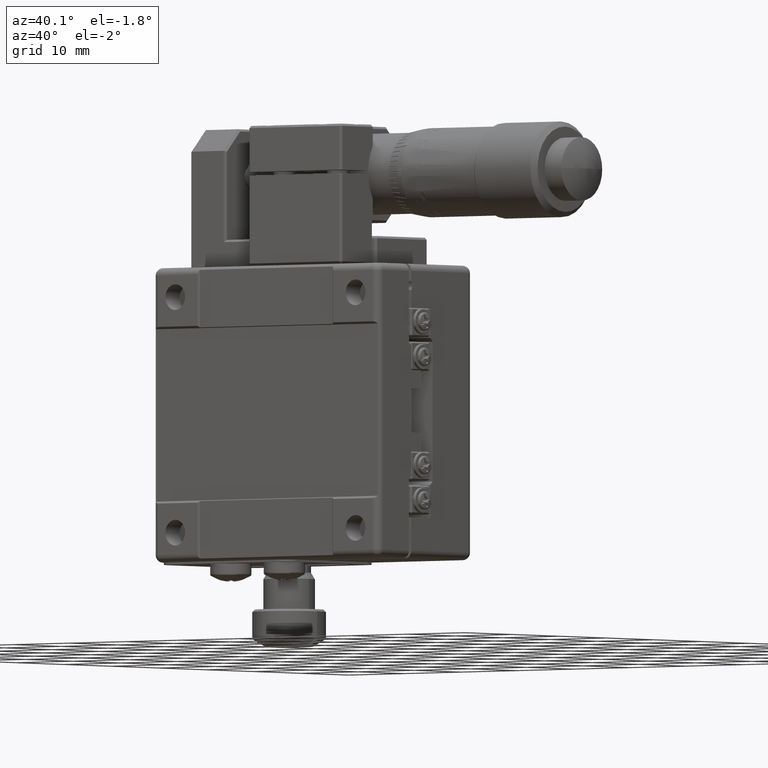
[diagram: clean part render]
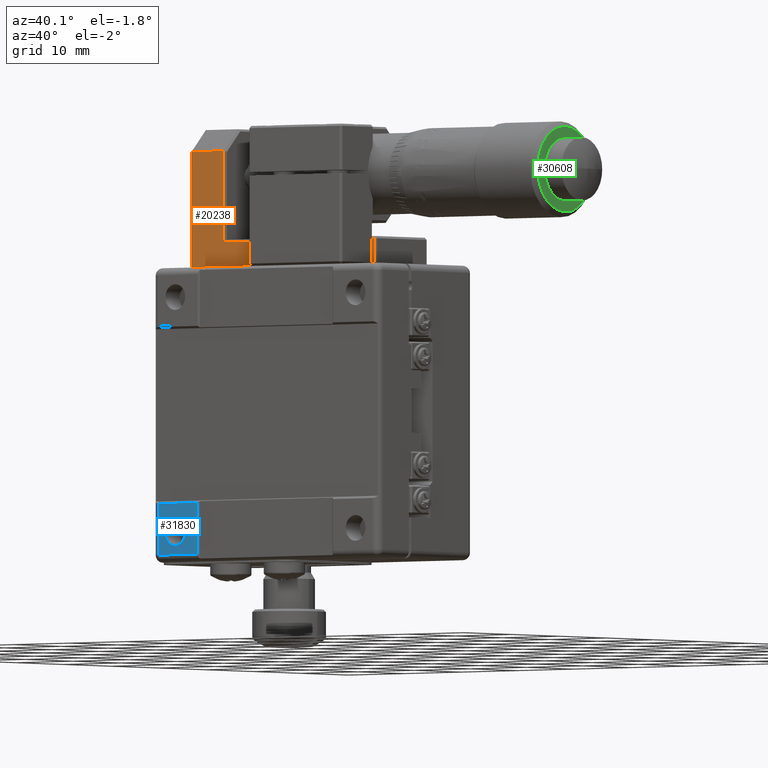
[diagram: same view with three faces highlighted in distinct colors, each labeled with its STEP entity id]
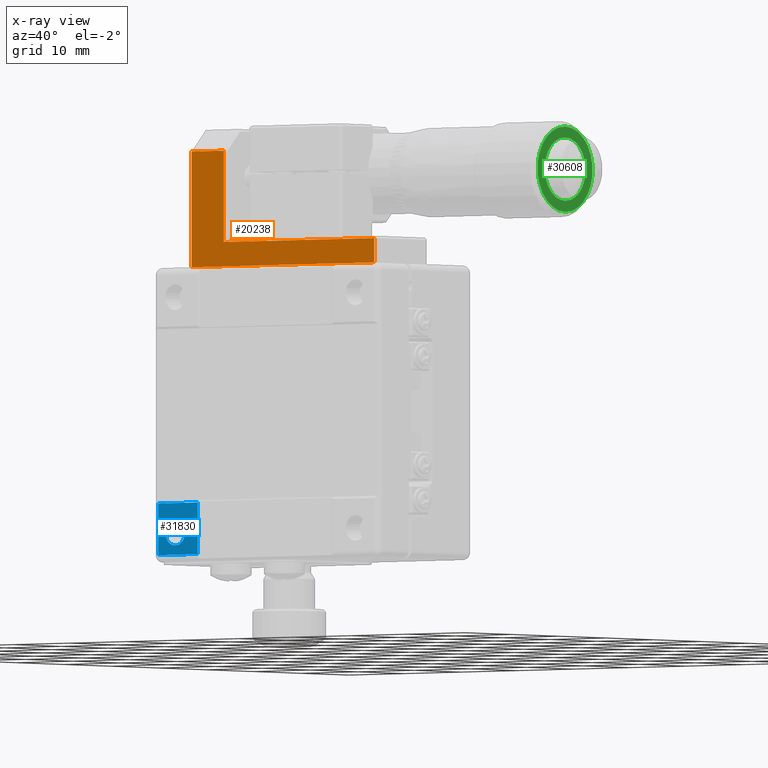
[diagram: x-ray of the same camera — body ghosted, the three highlighted faces saturated]
A machine part, auxiliary view with three faces highlighted in distinct colors.
The next image is the same camera in x-ray (body ghosted, the three faces saturated) — at least one of them is partly hidden behind the body in this view.
Their STEP definitions:

[orange] entity #20238 — the highlighted planar face has unit normal (0, 1, 0).
#406 = LINE ( 'NONE', #8117, #12167 ) ;
#1629 = ORIENTED_EDGE ( 'NONE', *, *, #2815, .T. ) ;
#2815 = EDGE_CURVE ( 'NONE', #12974, #37045, #28847, .T. ) ;
#4668 = VERTEX_POINT ( 'NONE', #13949 ) ;
#7109 = CARTESIAN_POINT ( 'NONE',  ( -13.32032384142936010, 0.2082635399218734917, 20.00000000000000000 ) ) ;
#7544 = CARTESIAN_POINT ( 'NONE',  ( -19.02032384142934873, 0.2082635399218739913, 36.00000000000000000 ) ) ;
#8117 = CARTESIAN_POINT ( 'NONE',  ( -19.02032384142934873, 0.2082635399218739913, 20.00000000000000000 ) ) ;
#8694 = CARTESIAN_POINT ( 'NONE',  ( -19.32032384142934944, 0.2082635399218739913, 20.29999999999999716 ) ) ;
#10838 = EDGE_CURVE ( 'NONE', #52133, #12974, #21273, .T. ) ;
#12167 = VECTOR ( 'NONE', #17190, 1000.000000000000000 ) ;
#12577 = ORIENTED_EDGE ( 'NONE', *, *, #49721, .T. ) ;
#12897 = DIRECTION ( 'NONE',  ( 1.000000000000000000, -2.775557561562909840E-17, 0.000000000000000000 ) ) ;
#12974 = VERTEX_POINT ( 'NONE', #32452 ) ;
#13949 = CARTESIAN_POINT ( 'NONE',  ( -13.32032384142936010, 0.2082635399218734917, 36.00000000000000000 ) ) ;
#14346 = VERTEX_POINT ( 'NONE', #21691 ) ;
#15741 = EDGE_CURVE ( 'NONE', #4668, #40646, #50387, .T. ) ;
#16083 = AXIS2_PLACEMENT_3D ( 'NONE', #18152, #26041, #12897 ) ;
#16724 = DIRECTION ( 'NONE',  ( -5.625621749411119448E-17, -1.123714534568479871E-17, 1.000000000000000000 ) ) ;
#17190 = DIRECTION ( 'NONE',  ( 3.434620910002055003E-16, 1.123714534568477868E-17, -1.000000000000000000 ) ) ;
#17727 = VECTOR ( 'NONE', #36351, 1000.000000000000000 ) ;
#18152 = CARTESIAN_POINT ( 'NONE',  ( -19.32032384142934944, 0.2082635399218739913, 20.00000000000000000 ) ) ;
#18345 = ORIENTED_EDGE ( 'NONE', *, *, #10838, .T. ) ;
#20238 = ADVANCED_FACE ( 'NONE', ( #48836 ), #53207, .F. ) ;
#21244 = CARTESIAN_POINT ( 'NONE',  ( -19.02032384142934873, 0.2082635399218739913, 20.29999999999999716 ) ) ;
#21273 = LINE ( 'NONE', #8694, #51679 ) ;
#21691 = CARTESIAN_POINT ( 'NONE',  ( -13.32032384142936010, 0.2082635399218734917, 23.59999999999999787 ) ) ;
#24462 = DIRECTION ( 'NONE',  ( -3.434620910002055003E-16, -1.123714534568477868E-17, 1.000000000000000000 ) ) ;
#24810 = CARTESIAN_POINT ( 'NONE',  ( -19.32032384142934944, 0.2082635399218739913, 23.59999999999999787 ) ) ;
#24939 = EDGE_CURVE ( 'NONE', #14346, #4668, #47704, .T. ) ;
#26041 = DIRECTION ( 'NONE',  ( 2.775557561562909840E-17, 1.000000000000000000, 1.123714534568353838E-17 ) ) ;
#27874 = CARTESIAN_POINT ( 'NONE',  ( -19.32032384142934944, 0.2082635399218734917, 36.00000000000000000 ) ) ;
#28847 = LINE ( 'NONE', #55429, #54297 ) ;
#32452 = CARTESIAN_POINT ( 'NONE',  ( 13.37967615857064096, 0.2082635399218729921, 20.29999999999999716 ) ) ;
#32720 = VECTOR ( 'NONE', #52271, 1000.000000000000000 ) ;
#32779 = VECTOR ( 'NONE', #16724, 1000.000000000000000 ) ;
#34496 = ORIENTED_EDGE ( 'NONE', *, *, #15741, .T. ) ;
#34700 = ORIENTED_EDGE ( 'NONE', *, *, #49152, .T. ) ;
#34778 = CARTESIAN_POINT ( 'NONE',  ( 13.37967615857064096, 0.2082635399218729921, 23.59999999999999787 ) ) ;
#36351 = DIRECTION ( 'NONE',  ( -1.000000000000000000, 2.775557561562914770E-17, -3.434620910002040212E-16 ) ) ;
#37045 = VERTEX_POINT ( 'NONE', #34778 ) ;
#40646 = VERTEX_POINT ( 'NONE', #7544 ) ;
#45086 = EDGE_LOOP ( 'NONE', ( #34496, #34700, #18345, #1629, #12577, #49281 ) ) ;
#47704 = LINE ( 'NONE', #7109, #32779 ) ;
#48836 = FACE_OUTER_BOUND ( 'NONE', #45086, .T. ) ;
#49152 = EDGE_CURVE ( 'NONE', #40646, #52133, #406, .T. ) ;
#49281 = ORIENTED_EDGE ( 'NONE', *, *, #24939, .T. ) ;
#49721 = EDGE_CURVE ( 'NONE', #37045, #14346, #56636, .T. ) ;
#50387 = LINE ( 'NONE', #27874, #17727 ) ;
#51679 = VECTOR ( 'NONE', #57482, 1000.000000000000000 ) ;
#52133 = VERTEX_POINT ( 'NONE', #21244 ) ;
#52271 = DIRECTION ( 'NONE',  ( -1.000000000000000000, 2.775557561562914770E-17, -1.810347992420764976E-16 ) ) ;
#53207 = PLANE ( 'NONE',  #16083 ) ;
#54297 = VECTOR ( 'NONE', #24462, 1000.000000000000000 ) ;
#55429 = CARTESIAN_POINT ( 'NONE',  ( 13.37967615857064096, 0.2082635399218729921, 20.00000000000000000 ) ) ;
#56636 = LINE ( 'NONE', #24810, #32720 ) ;
#57482 = DIRECTION ( 'NONE',  ( 1.000000000000000000, -2.775557561562914770E-17, 3.434620910002040212E-16 ) ) ;

[blue] entity #31830 — the highlighted planar face has unit normal (0, 1, 0).
#346 = VECTOR ( 'NONE', #43074, 1000.000000000000000 ) ;
#381 = CARTESIAN_POINT ( 'NONE',  ( -11.62032384142936081, -7.291736460078150017, -12.00000000000000000 ) ) ;
#2803 = VERTEX_POINT ( 'NONE', #6637 ) ;
#3210 = AXIS2_PLACEMENT_3D ( 'NONE', #37318, #19804, #16287 ) ;
#3271 = LINE ( 'NONE', #21100, #15593 ) ;
#3877 = VERTEX_POINT ( 'NONE', #32730 ) ;
#5737 = VECTOR ( 'NONE', #11456, 1000.000000000000000 ) ;
#6637 = CARTESIAN_POINT ( 'NONE',  ( -15.62032384142935015, -7.291736460078209525, -14.25000000000000000 ) ) ;
#7947 = DIRECTION ( 'NONE',  ( 0.000000000000000000, 1.084202172485504040E-15, -1.000000000000000000 ) ) ;
#10282 = ORIENTED_EDGE ( 'NONE', *, *, #25323, .T. ) ;
#11038 = ORIENTED_EDGE ( 'NONE', *, *, #34938, .T. ) ;
#11142 = EDGE_CURVE ( 'NONE', #47837, #3877, #17105, .T. ) ;
#11145 = LINE ( 'NONE', #46786, #5737 ) ;
#11456 = DIRECTION ( 'NONE',  ( 0.000000000000000000, 0.000000000000000000, 1.000000000000000000 ) ) ;
#15589 = AXIS2_PLACEMENT_3D ( 'NONE', #45258, #19254, #32991 ) ;
#15593 = VECTOR ( 'NONE', #7947, 1000.000000000000000 ) ;
#15907 = CARTESIAN_POINT ( 'NONE',  ( -18.62032384142935015, -7.291736460078159787, -12.00000000000000000 ) ) ;
#16287 = DIRECTION ( 'NONE',  ( 0.000000000000000000, 1.084202172485504040E-15, -1.000000000000000000 ) ) ;
#17105 = LINE ( 'NONE', #33171, #346 ) ;
#17185 = VECTOR ( 'NONE', #22725, 1000.000000000000000 ) ;
#17634 = CARTESIAN_POINT ( 'NONE',  ( -18.62032384142935015, -7.291736460078150017, -19.00000000000000000 ) ) ;
#19254 = DIRECTION ( 'NONE',  ( 0.000000000000000000, 1.000000000000000000, -1.486905836551550065E-15 ) ) ;
#19804 = DIRECTION ( 'NONE',  ( 0.000000000000000000, 1.000000000000000000, 1.084202172485504040E-15 ) ) ;
#21100 = CARTESIAN_POINT ( 'NONE',  ( -18.62032384142935015, -7.291736460078159787, -12.00000000000000000 ) ) ;
#22372 = ORIENTED_EDGE ( 'NONE', *, *, #37075, .T. ) ;
#22709 = ORIENTED_EDGE ( 'NONE', *, *, #11142, .T. ) ;
#22725 = DIRECTION ( 'NONE',  ( -1.000000000000000000, 0.000000000000000000, 0.000000000000000000 ) ) ;
#23301 = PLANE ( 'NONE',  #3210 ) ;
#25323 = EDGE_CURVE ( 'NONE', #3877, #41744, #11145, .T. ) ;
#25849 = CIRCLE ( 'NONE', #15589, 1.749999999999999778 ) ;
#26475 = EDGE_LOOP ( 'NONE', ( #27106, #22372 ) ) ;
#26541 = VERTEX_POINT ( 'NONE', #56346 ) ;
#26638 = CIRCLE ( 'NONE', #36904, 1.749999999999999778 ) ;
#27106 = ORIENTED_EDGE ( 'NONE', *, *, #32750, .T. ) ;
#27698 = FACE_BOUND ( 'NONE', #26475, .T. ) ;
#30373 = DIRECTION ( 'NONE',  ( 0.000000000000000000, 1.000000000000000000, -1.486905836551550065E-15 ) ) ;
#30971 = EDGE_CURVE ( 'NONE', #41744, #33738, #49615, .T. ) ;
#31830 = ADVANCED_FACE ( 'NONE', ( #27698, #45509 ), #23301, .F. ) ;
#32730 = CARTESIAN_POINT ( 'NONE',  ( -11.62032384142936081, -7.291736460078150017, -19.00000000000000000 ) ) ;
#32750 = EDGE_CURVE ( 'NONE', #2803, #26541, #26638, .T. ) ;
#32991 = DIRECTION ( 'NONE',  ( 0.000000000000000000, 1.486905836551549079E-15, 1.000000000000000000 ) ) ;
#33171 = CARTESIAN_POINT ( 'NONE',  ( 20.37967615857065340, -7.291736460078150017, -19.00000000000000000 ) ) ;
#33513 = EDGE_LOOP ( 'NONE', ( #11038, #22709, #10282, #34581 ) ) ;
#33738 = VERTEX_POINT ( 'NONE', #15907 ) ;
#34581 = ORIENTED_EDGE ( 'NONE', *, *, #30971, .T. ) ;
#34938 = EDGE_CURVE ( 'NONE', #33738, #47837, #3271, .T. ) ;
#36904 = AXIS2_PLACEMENT_3D ( 'NONE', #38849, #30373, #48200 ) ;
#37075 = EDGE_CURVE ( 'NONE', #26541, #2803, #25849, .T. ) ;
#37318 = CARTESIAN_POINT ( 'NONE',  ( 20.37967615857065340, -7.291736460078159787, -12.00000000000000000 ) ) ;
#38849 = CARTESIAN_POINT ( 'NONE',  ( -15.62032384142935015, -7.291736460078209525, -16.00000000000000000 ) ) ;
#41744 = VERTEX_POINT ( 'NONE', #381 ) ;
#43074 = DIRECTION ( 'NONE',  ( 1.000000000000000000, 0.000000000000000000, 0.000000000000000000 ) ) ;
#45219 = CARTESIAN_POINT ( 'NONE',  ( 20.37967615857065340, -7.291736460078159787, -12.00000000000000000 ) ) ;
#45258 = CARTESIAN_POINT ( 'NONE',  ( -15.62032384142935015, -7.291736460078209525, -16.00000000000000000 ) ) ;
#45509 = FACE_OUTER_BOUND ( 'NONE', #33513, .T. ) ;
#46786 = CARTESIAN_POINT ( 'NONE',  ( -11.62032384142936081, -7.291736460078150017, -20.00000000000000000 ) ) ;
#47837 = VERTEX_POINT ( 'NONE', #17634 ) ;
#48200 = DIRECTION ( 'NONE',  ( 0.000000000000000000, 1.486905836551549079E-15, 1.000000000000000000 ) ) ;
#49615 = LINE ( 'NONE', #45219, #17185 ) ;
#56346 = CARTESIAN_POINT ( 'NONE',  ( -15.62032384142935015, -7.291736460078209525, -17.75000000000000000 ) ) ;

[green] entity #30608 — the highlighted planar face has unit normal (1, 0, -0).
#2242 = CARTESIAN_POINT ( 'NONE',  ( 42.62967615857064629, 5.708263539921860641, 32.50000000000000000 ) ) ;
#3217 = VERTEX_POINT ( 'NONE', #14490 ) ;
#4219 = CIRCLE ( 'NONE', #17291, 5.800000999999999074 ) ;
#4233 = CIRCLE ( 'NONE', #47182, 5.800000999999999074 ) ;
#4382 = CARTESIAN_POINT ( 'NONE',  ( 42.62967615857064629, 10.00826653992194082, 32.50000000000000000 ) ) ;
#7121 = EDGE_CURVE ( 'NONE', #52613, #36510, #15957, .T. ) ;
#11438 = DIRECTION ( 'NONE',  ( 1.000000000000000000, 2.465190328815659976E-32, 0.000000000000000000 ) ) ;
#11981 = CARTESIAN_POINT ( 'NONE',  ( 42.62967615857064629, 5.708263539921860641, 32.50000000000000000 ) ) ;
#12744 = CARTESIAN_POINT ( 'NONE',  ( 42.62967615857064629, 5.708263539921860641, 32.50000000000000000 ) ) ;
#14001 = CIRCLE ( 'NONE', #51306, 4.300003000000080178 ) ;
#14336 = DIRECTION ( 'NONE',  ( -2.465190328815659976E-32, 1.000000000000000000, 0.000000000000000000 ) ) ;
#14490 = CARTESIAN_POINT ( 'NONE',  ( 42.62967615857064629, 5.708263539921860641, 26.69999899999994852 ) ) ;
#15957 = CIRCLE ( 'NONE', #23402, 4.300003000000080178 ) ;
#16559 = DIRECTION ( 'NONE',  ( 0.000000000000000000, 0.000000000000000000, -1.000000000000000000 ) ) ;
#17291 = AXIS2_PLACEMENT_3D ( 'NONE', #43097, #33190, #24412 ) ;
#20622 = CARTESIAN_POINT ( 'NONE',  ( 42.62967615857064629, 5.708263539921860641, 36.80000300000009616 ) ) ;
#23402 = AXIS2_PLACEMENT_3D ( 'NONE', #12744, #30548, #48375 ) ;
#24412 = DIRECTION ( 'NONE',  ( 0.000000000000000000, 0.000000000000000000, -1.000000000000000000 ) ) ;
#27185 = DIRECTION ( 'NONE',  ( 1.000000000000000000, 2.465190328815659976E-32, -2.465190328815659976E-32 ) ) ;
#28216 = ORIENTED_EDGE ( 'NONE', *, *, #46293, .F. ) ;
#28854 = ORIENTED_EDGE ( 'NONE', *, *, #7121, .F. ) ;
#30548 = DIRECTION ( 'NONE',  ( 1.000000000000000000, 2.465190328815659976E-32, 0.000000000000000000 ) ) ;
#30608 = ADVANCED_FACE ( 'NONE', ( #52650, #48819 ), #44416, .T. ) ;
#32329 = ORIENTED_EDGE ( 'NONE', *, *, #56120, .T. ) ;
#32721 = EDGE_CURVE ( 'NONE', #55788, #3217, #4233, .T. ) ;
#33190 = DIRECTION ( 'NONE',  ( 1.000000000000000000, 2.465190328815659976E-32, 0.000000000000000000 ) ) ;
#33326 = CARTESIAN_POINT ( 'NONE',  ( 42.62967615857064629, 5.708263539921860641, 28.19999699999995002 ) ) ;
#36510 = VERTEX_POINT ( 'NONE', #20622 ) ;
#38574 = DIRECTION ( 'NONE',  ( 0.000000000000000000, 0.000000000000000000, -1.000000000000000000 ) ) ;
#39786 = EDGE_LOOP ( 'NONE', ( #28854, #28216 ) ) ;
#43097 = CARTESIAN_POINT ( 'NONE',  ( 42.62967615857064629, 5.708263539921860641, 32.50000000000000000 ) ) ;
#44416 = PLANE ( 'NONE',  #54518 ) ;
#46293 = EDGE_CURVE ( 'NONE', #36510, #52613, #14001, .T. ) ;
#47100 = CARTESIAN_POINT ( 'NONE',  ( 42.62967615857064629, 5.708263539921860641, 38.30000100000009411 ) ) ;
#47182 = AXIS2_PLACEMENT_3D ( 'NONE', #11981, #11438, #38574 ) ;
#48375 = DIRECTION ( 'NONE',  ( 0.000000000000000000, 0.000000000000000000, -1.000000000000000000 ) ) ;
#48819 = FACE_OUTER_BOUND ( 'NONE', #50656, .T. ) ;
#50656 = EDGE_LOOP ( 'NONE', ( #56517, #32329 ) ) ;
#51306 = AXIS2_PLACEMENT_3D ( 'NONE', #2242, #51357, #16559 ) ;
#51357 = DIRECTION ( 'NONE',  ( 1.000000000000000000, 2.465190328815659976E-32, 0.000000000000000000 ) ) ;
#52613 = VERTEX_POINT ( 'NONE', #33326 ) ;
#52650 = FACE_BOUND ( 'NONE', #39786, .T. ) ;
#54518 = AXIS2_PLACEMENT_3D ( 'NONE', #4382, #27185, #14336 ) ;
#55788 = VERTEX_POINT ( 'NONE', #47100 ) ;
#56120 = EDGE_CURVE ( 'NONE', #3217, #55788, #4219, .T. ) ;
#56517 = ORIENTED_EDGE ( 'NONE', *, *, #32721, .T. ) ;